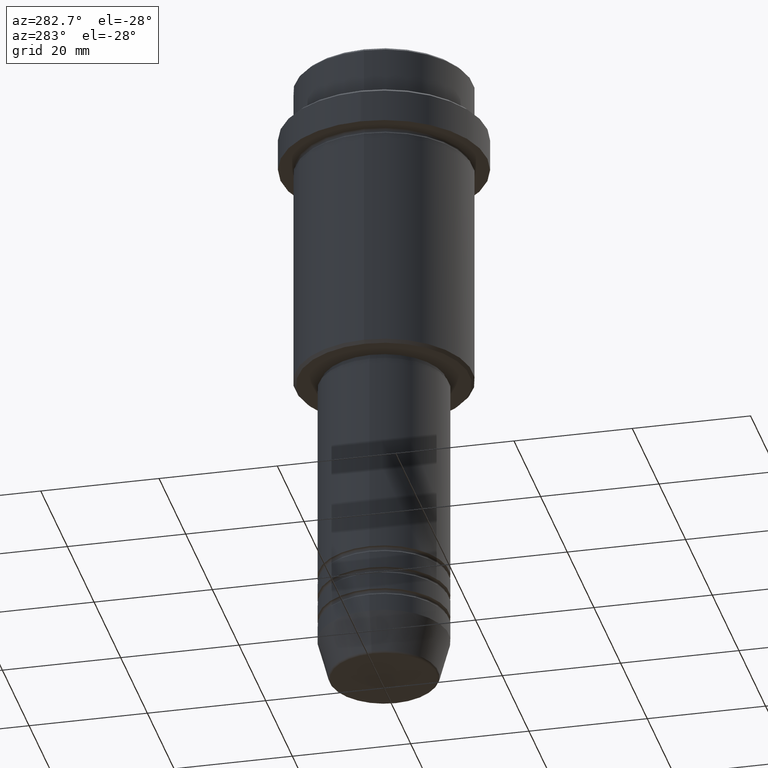
[diagram: clean part render]
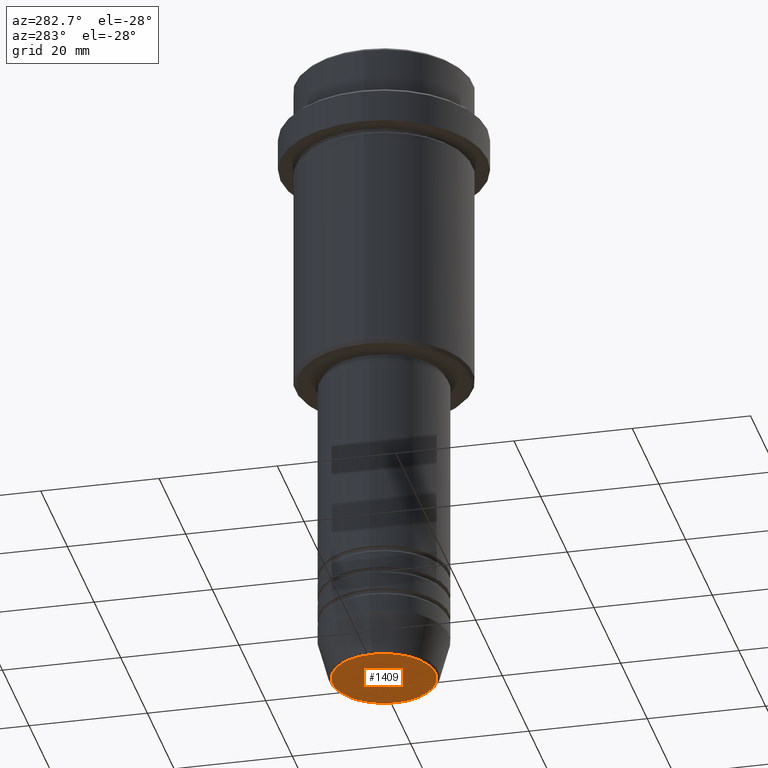
[diagram: same view with one face highlighted and labeled with its STEP entity id]
A machine part, auxiliary view. The second image highlights one B-rep face of the part: STEP entity #1409.
In plain terms, the highlighted planar face has unit normal (0, -0, 1).
Its self-contained STEP definition (entity closure, byte-faithful):
#65 = DIRECTION ( 'NONE',  ( 1.000000000000000000, 0.000000000000000000, 0.000000000000000000 ) ) ;
#151 = CARTESIAN_POINT ( 'NONE',  ( 0.000000000000000000, 0.000000000000000000, -109.9999999999999858 ) ) ;
#263 = DIRECTION ( 'NONE',  ( 0.000000000000000000, 0.000000000000000000, -1.000000000000000000 ) ) ;
#308 = VERTEX_POINT ( 'NONE', #1001 ) ;
#384 = AXIS2_PLACEMENT_3D ( 'NONE', #1155, #1047, #65 ) ;
#447 = CARTESIAN_POINT ( 'NONE',  ( -8.740692158992656502, 1.099999016768739259E-15, -109.9999999999999858 ) ) ;
#495 = CARTESIAN_POINT ( 'NONE',  ( 0.000000000000000000, 0.000000000000000000, -109.9999999999999858 ) ) ;
#612 = PLANE ( 'NONE',  #384 ) ;
#696 = AXIS2_PLACEMENT_3D ( 'NONE', #151, #263, #701 ) ;
#701 = DIRECTION ( 'NONE',  ( 1.000000000000000000, 0.000000000000000000, 0.000000000000000000 ) ) ;
#709 = ORIENTED_EDGE ( 'NONE', *, *, #935, .T. ) ;
#799 = ORIENTED_EDGE ( 'NONE', *, *, #949, .T. ) ;
#810 = DIRECTION ( 'NONE',  ( 0.000000000000000000, 0.000000000000000000, -1.000000000000000000 ) ) ;
#823 = FACE_OUTER_BOUND ( 'NONE', #877, .T. ) ;
#877 = EDGE_LOOP ( 'NONE', ( #799, #709 ) ) ;
#879 = CIRCLE ( 'NONE', #1356, 8.740692158992656502 ) ;
#935 = EDGE_CURVE ( 'NONE', #1204, #308, #1194, .T. ) ;
#949 = EDGE_CURVE ( 'NONE', #308, #1204, #879, .T. ) ;
#1001 = CARTESIAN_POINT ( 'NONE',  ( 8.740692158992656502, 0.000000000000000000, -109.9999999999999858 ) ) ;
#1047 = DIRECTION ( 'NONE',  ( 0.000000000000000000, -0.000000000000000000, 1.000000000000000000 ) ) ;
#1155 = CARTESIAN_POINT ( 'NONE',  ( 0.000000000000000000, 0.000000000000000000, -109.9999999999999858 ) ) ;
#1194 = CIRCLE ( 'NONE', #696, 8.740692158992656502 ) ;
#1204 = VERTEX_POINT ( 'NONE', #447 ) ;
#1247 = DIRECTION ( 'NONE',  ( 1.000000000000000000, 0.000000000000000000, 0.000000000000000000 ) ) ;
#1356 = AXIS2_PLACEMENT_3D ( 'NONE', #495, #810, #1247 ) ;
#1409 = ADVANCED_FACE ( 'NONE', ( #823 ), #612, .F. ) ;